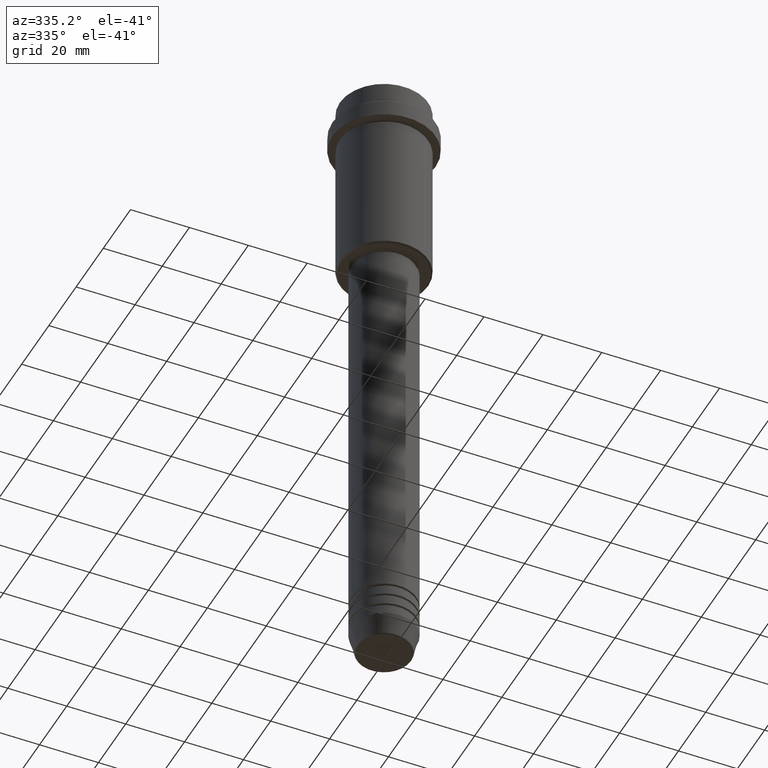
[diagram: clean part render]
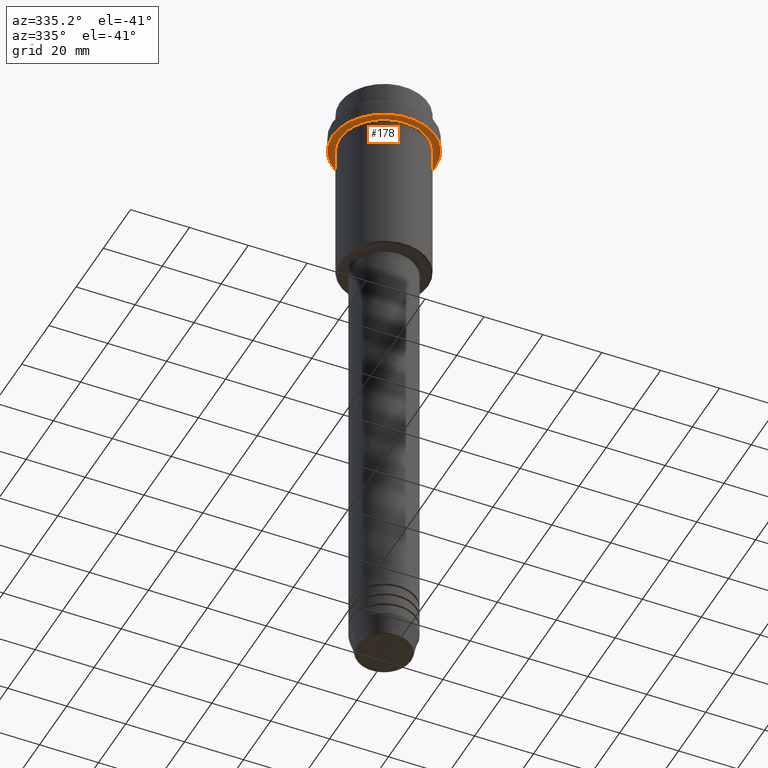
[diagram: same view with one face highlighted and labeled with its STEP entity id]
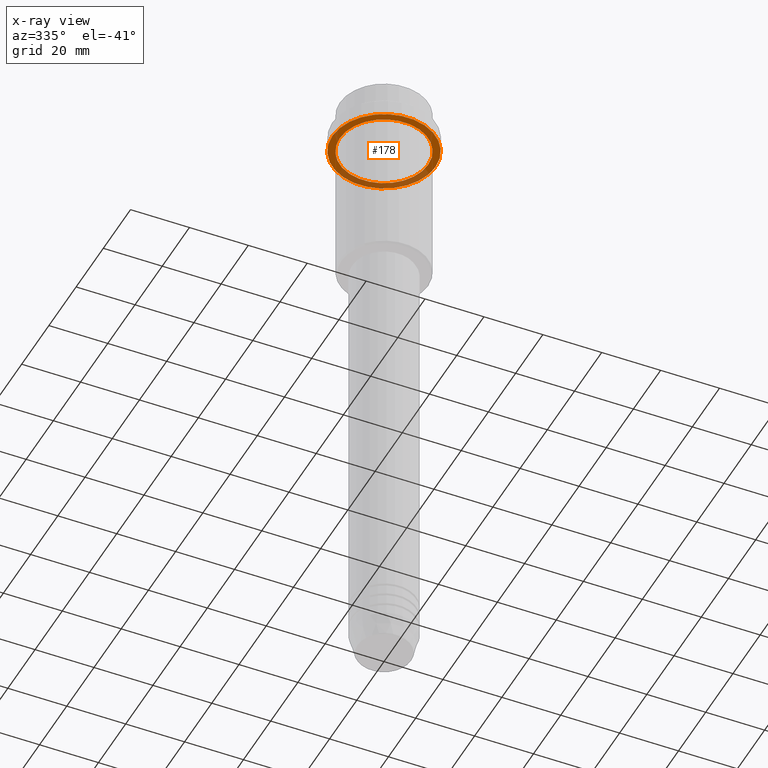
[diagram: x-ray of the same camera — body ghosted, the highlighted face saturated]
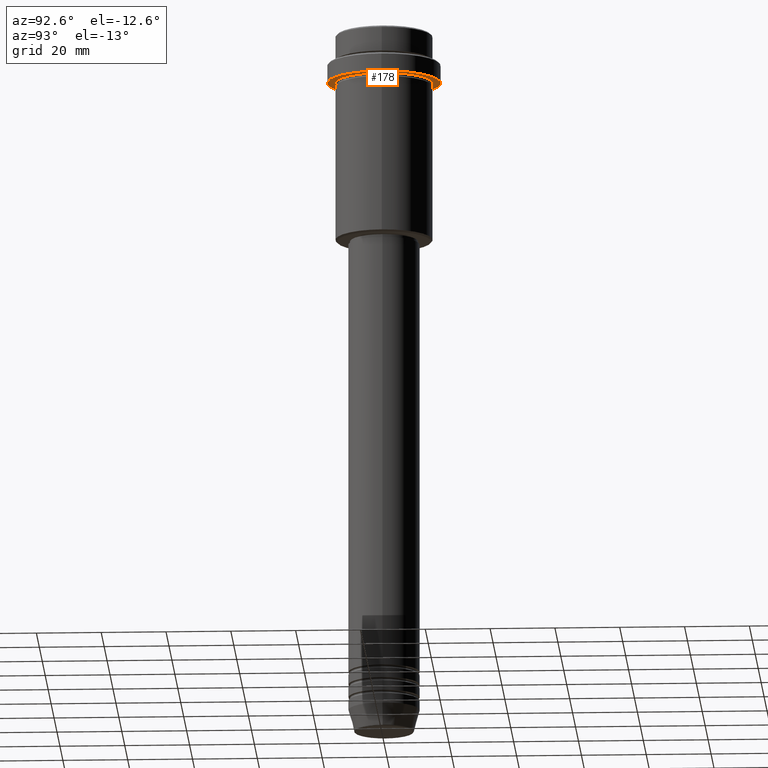
[diagram: same view with one face highlighted and labeled with its STEP entity id]
A machine part, auxiliary view. The second image highlights one B-rep face of the part: STEP entity #178.
The next image is the same camera in x-ray: the body ghosted, the highlighted face saturated — about 31% of this face is hidden behind the body in this view.
A second angle (auxiliary view) of the same face is appended — the face is thin or edge-on in the first view.
In plain terms, the highlighted planar face has unit normal (0, 0, -1).
Its self-contained STEP definition (entity closure, byte-faithful):
#71 = FACE_BOUND ( 'NONE', #173, .T. ) ;
#77 = ORIENTED_EDGE ( 'NONE', *, *, #488, .T. ) ;
#103 = CARTESIAN_POINT ( 'NONE',  ( 0.000000000000000000, 0.000000000000000000, -15.00000000000000178 ) ) ;
#106 = ORIENTED_EDGE ( 'NONE', *, *, #1264, .F. ) ;
#153 = CARTESIAN_POINT ( 'NONE',  ( -14.99999999999999645, 0.000000000000000000, -15.00000000000000000 ) ) ;
#154 = CIRCLE ( 'NONE', #1093, 17.50000000000000000 ) ;
#173 = EDGE_LOOP ( 'NONE', ( #272, #77 ) ) ;
#175 = DIRECTION ( 'NONE',  ( 1.000000000000000000, 0.000000000000000000, 0.000000000000000000 ) ) ;
#178 = ADVANCED_FACE ( 'NONE', ( #71, #640 ), #768, .T. ) ;
#187 = DIRECTION ( 'NONE',  ( -1.000000000000000000, 0.000000000000000000, -0.000000000000000000 ) ) ;
#202 = CIRCLE ( 'NONE', #569, 17.50000000000000000 ) ;
#223 = AXIS2_PLACEMENT_3D ( 'NONE', #1105, #572, #359 ) ;
#272 = ORIENTED_EDGE ( 'NONE', *, *, #1179, .T. ) ;
#329 = DIRECTION ( 'NONE',  ( -1.000000000000000000, 0.000000000000000000, 0.000000000000000000 ) ) ;
#336 = VERTEX_POINT ( 'NONE', #153 ) ;
#359 = DIRECTION ( 'NONE',  ( -1.000000000000000000, 0.000000000000000000, 0.000000000000000000 ) ) ;
#451 = EDGE_CURVE ( 'NONE', #1293, #676, #154, .T. ) ;
#485 = CARTESIAN_POINT ( 'NONE',  ( 0.000000000000000000, 0.000000000000000000, -15.00000000000000178 ) ) ;
#488 = EDGE_CURVE ( 'NONE', #1003, #336, #527, .T. ) ;
#525 = CARTESIAN_POINT ( 'NONE',  ( 14.99999999999999645, 1.836970198721029194E-15, -15.00000000000000000 ) ) ;
#527 = CIRCLE ( 'NONE', #954, 14.99999999999999645 ) ;
#569 = AXIS2_PLACEMENT_3D ( 'NONE', #485, #1225, #175 ) ;
#572 = DIRECTION ( 'NONE',  ( -0.000000000000000000, -0.000000000000000000, 1.000000000000000000 ) ) ;
#638 = EDGE_LOOP ( 'NONE', ( #1154, #106 ) ) ;
#640 = FACE_OUTER_BOUND ( 'NONE', #638, .T. ) ;
#656 = CARTESIAN_POINT ( 'NONE',  ( 0.000000000000000000, 0.000000000000000000, -15.00000000000000000 ) ) ;
#676 = VERTEX_POINT ( 'NONE', #1140 ) ;
#740 = CARTESIAN_POINT ( 'NONE',  ( 0.000000000000000000, 17.50000000000000000, -15.00000000000000000 ) ) ;
#768 = PLANE ( 'NONE',  #1145 ) ;
#828 = CARTESIAN_POINT ( 'NONE',  ( 17.50000000000000000, 0.000000000000000000, -15.00000000000000178 ) ) ;
#954 = AXIS2_PLACEMENT_3D ( 'NONE', #656, #1297, #329 ) ;
#963 = DIRECTION ( 'NONE',  ( -0.000000000000000000, -0.000000000000000000, 1.000000000000000000 ) ) ;
#1003 = VERTEX_POINT ( 'NONE', #525 ) ;
#1093 = AXIS2_PLACEMENT_3D ( 'NONE', #103, #963, #1207 ) ;
#1105 = CARTESIAN_POINT ( 'NONE',  ( 0.000000000000000000, 0.000000000000000000, -15.00000000000000000 ) ) ;
#1132 = CIRCLE ( 'NONE', #223, 14.99999999999999645 ) ;
#1140 = CARTESIAN_POINT ( 'NONE',  ( -17.50000000000000000, 2.143131898507868248E-15, -15.00000000000000178 ) ) ;
#1145 = AXIS2_PLACEMENT_3D ( 'NONE', #740, #1160, #187 ) ;
#1154 = ORIENTED_EDGE ( 'NONE', *, *, #451, .F. ) ;
#1160 = DIRECTION ( 'NONE',  ( 0.000000000000000000, 0.000000000000000000, -1.000000000000000000 ) ) ;
#1179 = EDGE_CURVE ( 'NONE', #336, #1003, #1132, .T. ) ;
#1207 = DIRECTION ( 'NONE',  ( 1.000000000000000000, 0.000000000000000000, 0.000000000000000000 ) ) ;
#1225 = DIRECTION ( 'NONE',  ( -0.000000000000000000, -0.000000000000000000, 1.000000000000000000 ) ) ;
#1264 = EDGE_CURVE ( 'NONE', #676, #1293, #202, .T. ) ;
#1293 = VERTEX_POINT ( 'NONE', #828 ) ;
#1297 = DIRECTION ( 'NONE',  ( -0.000000000000000000, -0.000000000000000000, 1.000000000000000000 ) ) ;